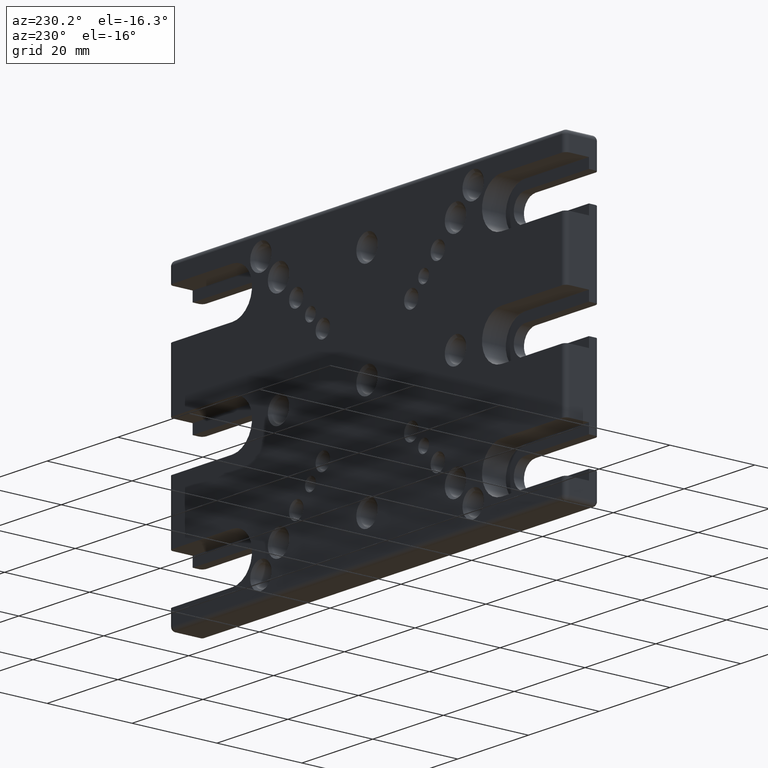
[diagram: clean part render]
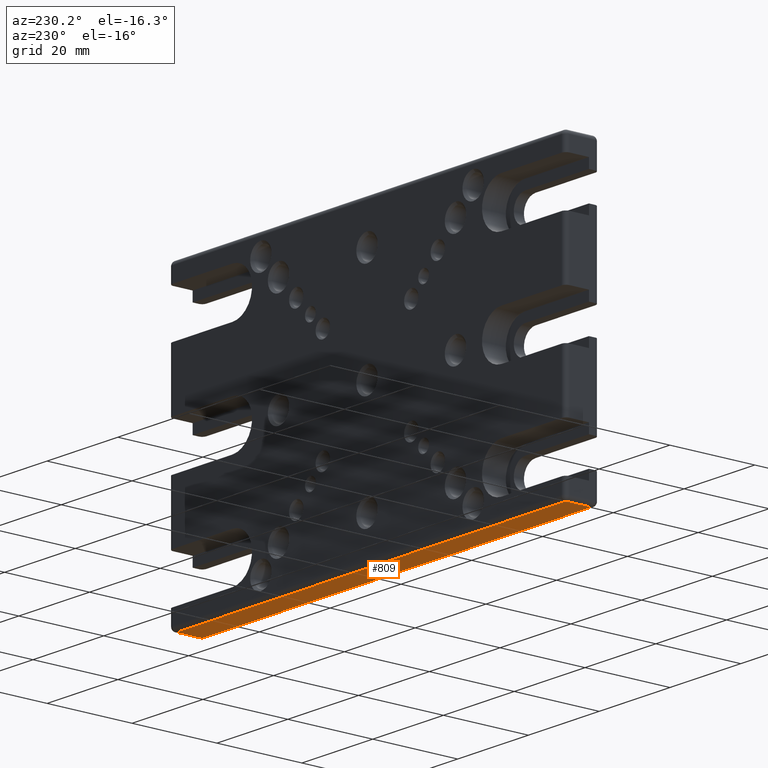
[diagram: same view with one face highlighted and labeled with its STEP entity id]
A machine part, auxiliary view. The second image highlights one B-rep face of the part: STEP entity #809.
In plain terms, the highlighted planar face has unit normal (0, 0, 1).
Its self-contained STEP definition (entity closure, byte-faithful):
#29 = AXIS2_PLACEMENT_3D ( 'NONE', #136, #69, #1333 ) ;
#65 = CARTESIAN_POINT ( 'NONE',  ( -55.00000000000000000, 1.000000000000000000, -35.00000000000000711 ) ) ;
#69 = DIRECTION ( 'NONE',  ( 0.000000000000000000, 0.000000000000000000, 1.000000000000000000 ) ) ;
#91 = DIRECTION ( 'NONE',  ( 1.000000000000000000, -0.000000000000000000, -0.000000000000000000 ) ) ;
#120 = EDGE_CURVE ( 'NONE', #2399, #1301, #2693, .T. ) ;
#136 = CARTESIAN_POINT ( 'NONE',  ( -56.00000000000000000, 8.000000000000000000, -35.00000000000000711 ) ) ;
#215 = CARTESIAN_POINT ( 'NONE',  ( 54.99999999999998579, 7.000000000000000000, -35.00000000000000711 ) ) ;
#228 = EDGE_LOOP ( 'NONE', ( #327, #1270, #2350, #2643 ) ) ;
#327 = ORIENTED_EDGE ( 'NONE', *, *, #3622, .T. ) ;
#336 = DIRECTION ( 'NONE',  ( -0.000000000000000000, 1.000000000000000000, -0.000000000000000000 ) ) ;
#478 = FACE_OUTER_BOUND ( 'NONE', #228, .T. ) ;
#519 = VECTOR ( 'NONE', #831, 1000.000000000000000 ) ;
#638 = VECTOR ( 'NONE', #91, 1000.000000000000000 ) ;
#809 = ADVANCED_FACE ( 'NONE', ( #478 ), #2318, .F. ) ;
#812 = LINE ( 'NONE', #2990, #638 ) ;
#831 = DIRECTION ( 'NONE',  ( -1.000000000000000000, 0.000000000000000000, 0.000000000000000000 ) ) ;
#958 = CARTESIAN_POINT ( 'NONE',  ( -55.00000000000000000, 8.000000000000000000, -35.00000000000000711 ) ) ;
#1270 = ORIENTED_EDGE ( 'NONE', *, *, #120, .T. ) ;
#1301 = VERTEX_POINT ( 'NONE', #65 ) ;
#1333 = DIRECTION ( 'NONE',  ( 1.000000000000000000, 0.000000000000000000, -0.000000000000000000 ) ) ;
#1553 = VERTEX_POINT ( 'NONE', #215 ) ;
#1803 = LINE ( 'NONE', #2128, #2299 ) ;
#2128 = CARTESIAN_POINT ( 'NONE',  ( 54.99999999999998579, 8.000000000000000000, -35.00000000000000711 ) ) ;
#2278 = EDGE_CURVE ( 'NONE', #3161, #1553, #812, .T. ) ;
#2299 = VECTOR ( 'NONE', #3673, 1000.000000000000000 ) ;
#2318 = PLANE ( 'NONE',  #29 ) ;
#2350 = ORIENTED_EDGE ( 'NONE', *, *, #3420, .T. ) ;
#2399 = VERTEX_POINT ( 'NONE', #3572 ) ;
#2642 = VECTOR ( 'NONE', #336, 1000.000000000000000 ) ;
#2643 = ORIENTED_EDGE ( 'NONE', *, *, #2278, .T. ) ;
#2693 = LINE ( 'NONE', #3947, #519 ) ;
#2764 = CARTESIAN_POINT ( 'NONE',  ( -55.00000000000000000, 7.000000000000000000, -35.00000000000000711 ) ) ;
#2990 = CARTESIAN_POINT ( 'NONE',  ( 54.99999999999995737, 7.000000000000000000, -35.00000000000000711 ) ) ;
#3161 = VERTEX_POINT ( 'NONE', #2764 ) ;
#3420 = EDGE_CURVE ( 'NONE', #1301, #3161, #3761, .T. ) ;
#3572 = CARTESIAN_POINT ( 'NONE',  ( 54.99999999999998579, 1.000000000000000000, -35.00000000000000711 ) ) ;
#3622 = EDGE_CURVE ( 'NONE', #1553, #2399, #1803, .T. ) ;
#3673 = DIRECTION ( 'NONE',  ( 0.000000000000000000, -1.000000000000000000, 0.000000000000000000 ) ) ;
#3761 = LINE ( 'NONE', #958, #2642 ) ;
#3947 = CARTESIAN_POINT ( 'NONE',  ( -56.00000000000000000, 1.000000000000000000, -35.00000000000000711 ) ) ;